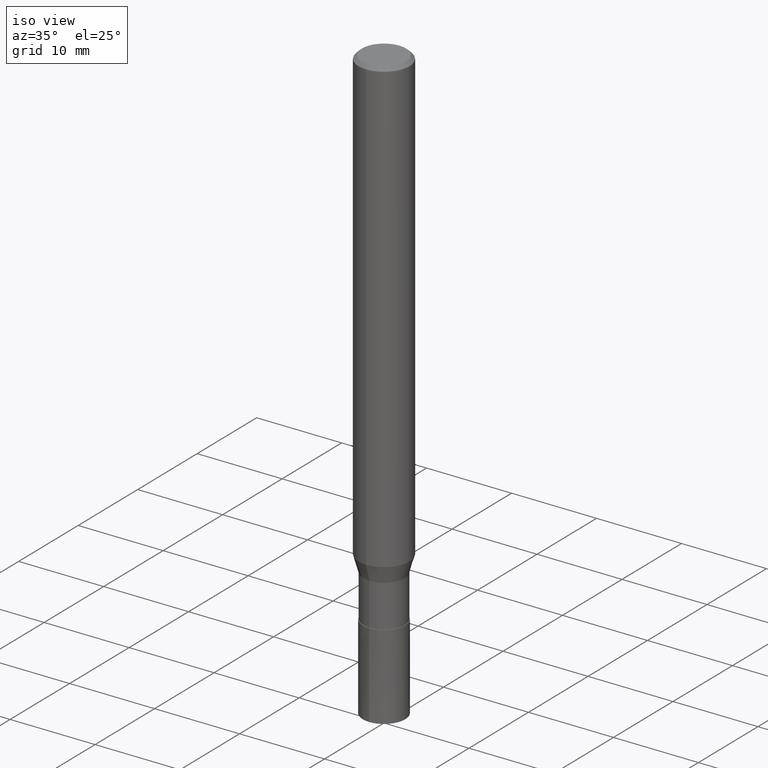
[diagram: clean part render]
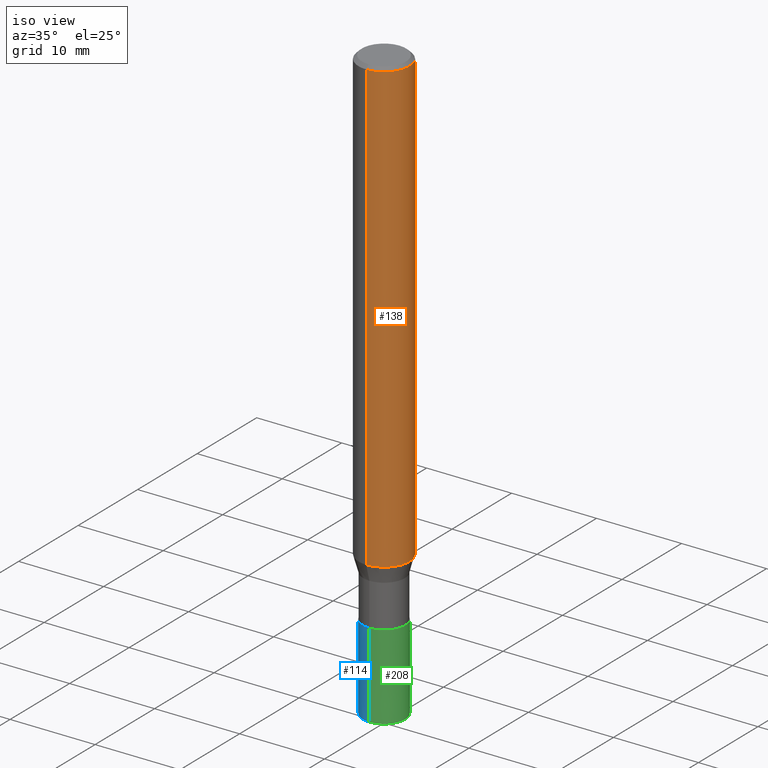
[diagram: same view with three faces highlighted in distinct colors, each labeled with its STEP entity id]
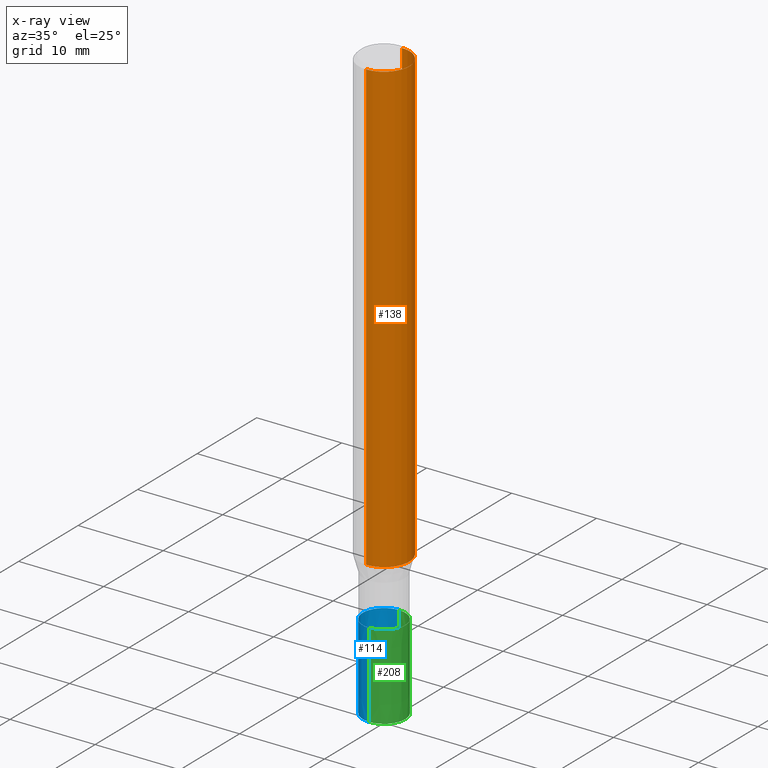
[diagram: x-ray of the same camera — body ghosted, the three highlighted faces saturated]
A machine part, iso view with three faces highlighted in distinct colors.
The next image is the same camera in x-ray (body ghosted, the three faces saturated) — at least one of them is partly hidden behind the body in this view.
Their STEP definitions:

[orange] entity #138 — the highlighted cylindrical surface (edge-blend (fillet) strip) has radius 3 mm, axis along (-0, -0, 1).
#96=EDGE_CURVE('',#190,#168,#233,.T.);
#112=EDGE_CURVE('',#190,#132,#251,.T.);
#132=VERTEX_POINT('',#275);
#138=ADVANCED_FACE('',(#281),#282,.T.);
#140=EDGE_CURVE('',#166,#168,#284,.T.);
#166=VERTEX_POINT('',#313);
#168=VERTEX_POINT('',#315);
#174=EDGE_CURVE('',#132,#166,#322,.T.);
#190=VERTEX_POINT('',#341);
#233=CIRCLE('',#381,3.0);
#251=LINE('',#402,#403);
#275=CARTESIAN_POINT('',(0.0,3.0,-53.082));
#281=FACE_OUTER_BOUND('',#436,.T.);
#282=CYLINDRICAL_SURFACE('',#437,3.0);
#284=LINE('',#440,#441);
#313=CARTESIAN_POINT('',(3.67381906146713E-016,-3.0,-53.082));
#315=CARTESIAN_POINT('',(3.67381906146713E-016,-3.0,-0.399999999999999));
#322=CIRCLE('',#490,3.0);
#341=CARTESIAN_POINT('',(0.0,3.0,-0.399999999999999));
#381=AXIS2_PLACEMENT_3D('',#548,#549,#550);
#402=CARTESIAN_POINT('',(-3.67381906146713E-016,3.0,-26.741));
#403=VECTOR('',#573,1.0);
#436=EDGE_LOOP('',(#610,#611,#612,#613));
#437=AXIS2_PLACEMENT_3D('',#614,#615,#616);
#440=CARTESIAN_POINT('',(3.67381906146713E-016,-3.0,-26.741));
#441=VECTOR('',#617,1.0);
#490=AXIS2_PLACEMENT_3D('',#653,#654,#655);
#548=CARTESIAN_POINT('',(0.0,0.0,-0.399999999999999));
#549=DIRECTION('',(0.0,0.0,-1.0));
#550=DIRECTION('',(0.0,1.0,0.0));
#573=DIRECTION('',(0.0,0.0,-1.0));
#610=ORIENTED_EDGE('',*,*,#112,.F.);
#611=ORIENTED_EDGE('',*,*,#96,.T.);
#612=ORIENTED_EDGE('',*,*,#140,.F.);
#613=ORIENTED_EDGE('',*,*,#174,.F.);
#614=CARTESIAN_POINT('',(0.0,0.0,-26.741));
#615=DIRECTION('',(-0.0,-0.0,1.0));
#616=DIRECTION('',(0.0,1.0,0.0));
#617=DIRECTION('',(-0.0,-0.0,1.0));
#653=CARTESIAN_POINT('',(0.0,0.0,-53.082));
#654=DIRECTION('',(0.0,0.0,-1.0));
#655=DIRECTION('',(0.0,1.0,0.0));

[blue] entity #114 — the highlighted conical surface has half-angle 0.001 deg.
#102=EDGE_CURVE('',#154,#124,#239,.T.);
#114=ADVANCED_FACE('',(#253),#254,.T.);
#124=VERTEX_POINT('',#265);
#126=EDGE_CURVE('',#124,#134,#267,.T.);
#134=VERTEX_POINT('',#277);
#146=VERTEX_POINT('',#291);
#154=VERTEX_POINT('',#299);
#184=EDGE_CURVE('',#146,#134,#335,.T.);
#202=EDGE_CURVE('',#146,#154,#354,.T.);
#239=CIRCLE('',#389,2.4999);
#253=FACE_OUTER_BOUND('',#405,.T.);
#254=CONICAL_SURFACE('',#406,2.49995,9.99999999968777E-006);
#265=CARTESIAN_POINT('',(0.0,2.4999,-60.0));
#267=LINE('',#419,#420);
#277=CARTESIAN_POINT('',(0.0,2.5,-70.0));
#291=CARTESIAN_POINT('',(3.06151588455594E-016,-2.5,-70.0));
#299=CARTESIAN_POINT('',(3.06139342392056E-016,-2.4999,-60.0));
#335=CIRCLE('',#504,2.5);
#354=LINE('',#532,#533);
#389=AXIS2_PLACEMENT_3D('',#554,#555,#556);
#405=EDGE_LOOP('',(#575,#576,#577,#578));
#406=AXIS2_PLACEMENT_3D('',#579,#580,#581);
#419=CARTESIAN_POINT('',(-3.06145465423825E-016,2.49995,-65.0));
#420=VECTOR('',#591,1.0);
#504=AXIS2_PLACEMENT_3D('',#678,#679,#680);
#532=CARTESIAN_POINT('',(3.06145465423825E-016,-2.49995,-65.0));
#533=VECTOR('',#701,1.0);
#554=CARTESIAN_POINT('',(0.0,0.0,-60.0));
#555=DIRECTION('',(0.0,0.0,-1.0));
#556=DIRECTION('',(0.0,1.0,0.0));
#575=ORIENTED_EDGE('',*,*,#126,.T.);
#576=ORIENTED_EDGE('',*,*,#184,.F.);
#577=ORIENTED_EDGE('',*,*,#202,.T.);
#578=ORIENTED_EDGE('',*,*,#102,.T.);
#579=CARTESIAN_POINT('',(0.0,0.0,-65.0));
#580=DIRECTION('',(0.0,-0.0,-1.0));
#581=DIRECTION('',(0.0,1.0,0.0));
#591=DIRECTION('',(-1.22460635376373E-021,9.9999999995211E-006,-0.99999999995));
#678=CARTESIAN_POINT('',(0.0,0.0,-70.0));
#679=DIRECTION('',(0.0,0.0,-1.0));
#680=DIRECTION('',(0.0,1.0,0.0));
#701=DIRECTION('',(-1.22460635376373E-021,9.9999999995211E-006,0.99999999995));

[green] entity #208 — the highlighted conical surface has half-angle 0.001 deg.
#92=EDGE_CURVE('',#134,#146,#229,.T.);
#124=VERTEX_POINT('',#265);
#126=EDGE_CURVE('',#124,#134,#267,.T.);
#134=VERTEX_POINT('',#277);
#146=VERTEX_POINT('',#291);
#154=VERTEX_POINT('',#299);
#158=EDGE_CURVE('',#124,#154,#303,.T.);
#202=EDGE_CURVE('',#146,#154,#354,.T.);
#208=ADVANCED_FACE('',(#360),#361,.T.);
#229=CIRCLE('',#375,2.5);
#265=CARTESIAN_POINT('',(0.0,2.4999,-60.0));
#267=LINE('',#419,#420);
#277=CARTESIAN_POINT('',(0.0,2.5,-70.0));
#291=CARTESIAN_POINT('',(3.06151588455594E-016,-2.5,-70.0));
#299=CARTESIAN_POINT('',(3.06139342392056E-016,-2.4999,-60.0));
#303=CIRCLE('',#467,2.4999);
#354=LINE('',#532,#533);
#360=FACE_OUTER_BOUND('',#539,.T.);
#361=CONICAL_SURFACE('',#540,2.49995,9.99999999968777E-006);
#375=AXIS2_PLACEMENT_3D('',#542,#543,#544);
#419=CARTESIAN_POINT('',(-3.06145465423825E-016,2.49995,-65.0));
#420=VECTOR('',#591,1.0);
#467=AXIS2_PLACEMENT_3D('',#632,#633,#634);
#532=CARTESIAN_POINT('',(3.06145465423825E-016,-2.49995,-65.0));
#533=VECTOR('',#701,1.0);
#539=EDGE_LOOP('',(#707,#708,#709,#710));
#540=AXIS2_PLACEMENT_3D('',#711,#712,#713);
#542=CARTESIAN_POINT('',(0.0,0.0,-70.0));
#543=DIRECTION('',(0.0,0.0,-1.0));
#544=DIRECTION('',(0.0,1.0,0.0));
#591=DIRECTION('',(-1.22460635376373E-021,9.9999999995211E-006,-0.99999999995));
#632=CARTESIAN_POINT('',(0.0,0.0,-60.0));
#633=DIRECTION('',(0.0,0.0,-1.0));
#634=DIRECTION('',(0.0,1.0,0.0));
#701=DIRECTION('',(-1.22460635376373E-021,9.9999999995211E-006,0.99999999995));
#707=ORIENTED_EDGE('',*,*,#126,.F.);
#708=ORIENTED_EDGE('',*,*,#158,.T.);
#709=ORIENTED_EDGE('',*,*,#202,.F.);
#710=ORIENTED_EDGE('',*,*,#92,.F.);
#711=CARTESIAN_POINT('',(0.0,0.0,-65.0));
#712=DIRECTION('',(0.0,-0.0,-1.0));
#713=DIRECTION('',(0.0,1.0,0.0));